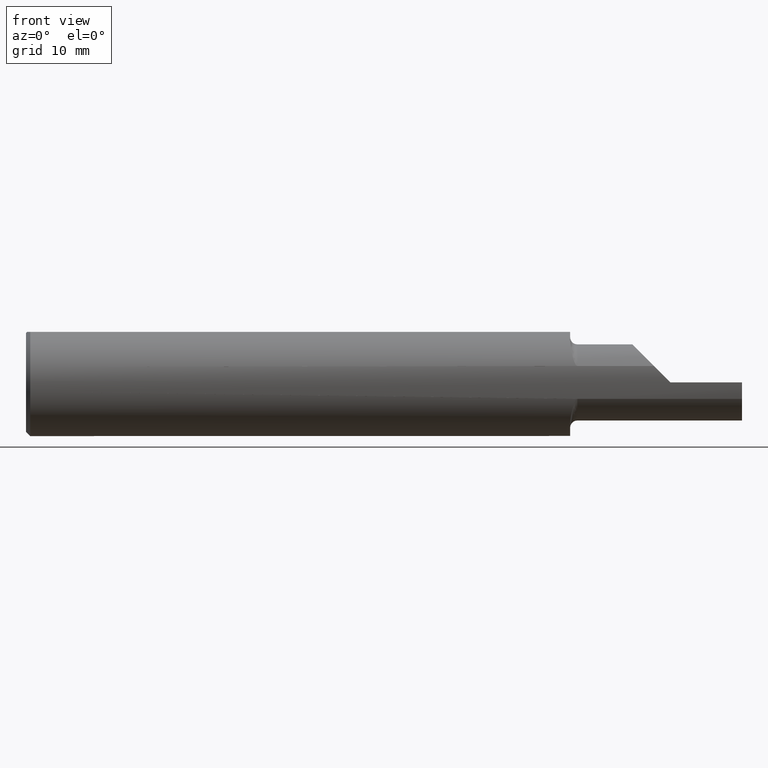
[diagram: clean part render]
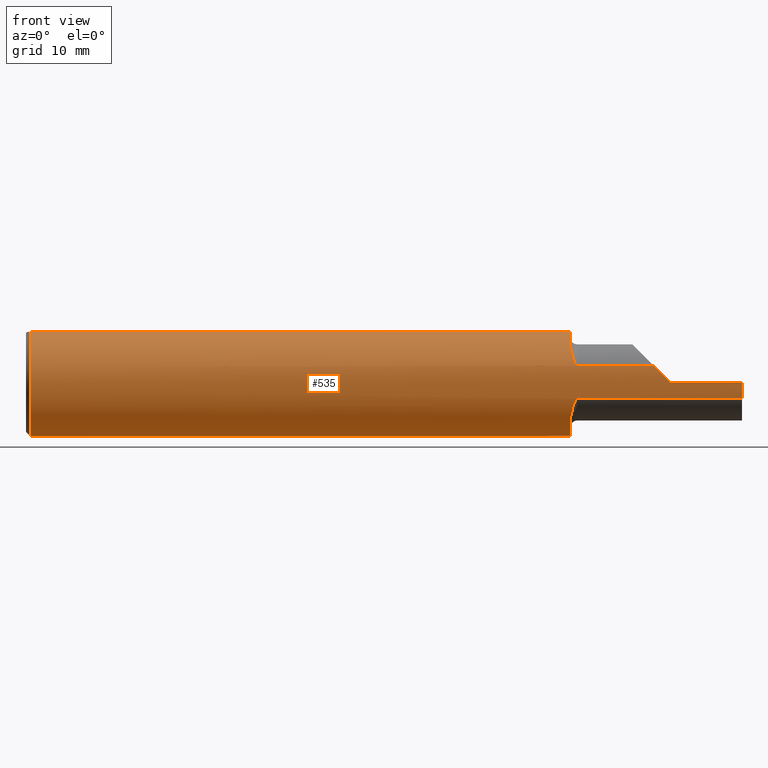
[diagram: same view with one face highlighted and labeled with its STEP entity id]
A machine part, front view. The second image highlights one B-rep face of the part: STEP entity #535.
In plain terms, the highlighted cylindrical surface (partial cylindrical patch) has radius 4.7587 mm, axis along (-1, -0, -0).
Its self-contained STEP definition (entity closure, byte-faithful):
#9 = CARTESIAN_POINT ( 'NONE',  ( 0.01500000000000093273, 0.000000000000000000, 0.000000000000000000 ) ) ;
#19 = AXIS2_PLACEMENT_3D ( 'NONE', #620, #899, #191 ) ;
#21 = DIRECTION ( 'NONE',  ( 1.000000000000000000, 0.000000000000000000, 0.000000000000000000 ) ) ;
#32 = ORIENTED_EDGE ( 'NONE', *, *, #883, .T. ) ;
#34 = CARTESIAN_POINT ( 'NONE',  ( 1.912861924135776270, -0.1712588160411981919, 0.07610809679489820290 ) ) ;
#35 = AXIS2_PLACEMENT_3D ( 'NONE', #322, #251, #592 ) ;
#42 = EDGE_CURVE ( 'NONE', #242, #57, #150, .T. ) ;
#44 = CARTESIAN_POINT ( 'NONE',  ( 1.908844572613993984, -0.1652240583779467920, 0.08882027308793423448 ) ) ;
#46 = CARTESIAN_POINT ( 'NONE',  ( 1.914331470962521431, -0.1730809661842622749, -0.07185561948439703195 ) ) ;
#50 = CIRCLE ( 'NONE', #812, 0.1873499999999999888 ) ;
#51 = DIRECTION ( 'NONE',  ( 0.000000000000000000, 0.000000000000000000, 1.000000000000000000 ) ) ;
#53 = ORIENTED_EDGE ( 'NONE', *, *, #164, .F. ) ;
#54 = CARTESIAN_POINT ( 'NONE',  ( 2.153260140802780942, -0.1783697086546692234, 0.05730854678360303156 ) ) ;
#57 = VERTEX_POINT ( 'NONE', #884 ) ;
#63 = AXIS2_PLACEMENT_3D ( 'NONE', #462, #394, #516 ) ;
#67 = CARTESIAN_POINT ( 'NONE',  ( 1.899999999999999023, -0.1312984737625748632, -0.1350514632126308956 ) ) ;
#82 = DIRECTION ( 'NONE',  ( -1.000000000000000000, -0.000000000000000000, -0.000000000000000000 ) ) ;
#95 = CARTESIAN_POINT ( 'NONE',  ( 1.920126530293609468, -0.1772957297413640665, -0.06055838166122240462 ) ) ;
#107 = EDGE_CURVE ( 'NONE', #369, #373, #351, .T. ) ;
#108 = ORIENTED_EDGE ( 'NONE', *, *, #473, .T. ) ;
#118 = CARTESIAN_POINT ( 'NONE',  ( 0.01500000000000093273, 0.06325108694718235836, 0.1763499999999999235 ) ) ;
#126 = CARTESIAN_POINT ( 'NONE',  ( 1.899999999999999911, -0.1160303770351322067, -0.1470951192429071075 ) ) ;
#147 = DIRECTION ( 'NONE',  ( 0.000000000000000000, 0.000000000000000000, -1.000000000000000000 ) ) ;
#150 = B_SPLINE_CURVE_WITH_KNOTS ( 'NONE', 3,
 ( #458, #803, #674, #455, #325, #669, #44, #34, #241, #739, #258, #598, #252, #173, #806, #604 ),
 .UNSPECIFIED., .F., .F.,
 ( 4, 2, 2, 2, 2, 2, 2, 4 ),
 ( 0.0004765446698425022357, 0.001211022660623638442, 0.001945500651404774703, 0.002679978642185911180, 0.003047217637576483430, 0.003230837135271765002, 0.003322646884119405571, 0.003414456632967046140 ),
 .UNSPECIFIED. ) ;
#152 = CARTESIAN_POINT ( 'NONE',  ( 1.899999999999999911, 0.000000000000000000, 0.000000000000000000 ) ) ;
#164 = EDGE_CURVE ( 'NONE', #237, #667, #911, .T. ) ;
#168 = ORIENTED_EDGE ( 'NONE', *, *, #338, .F. ) ;
#173 = CARTESIAN_POINT ( 'NONE',  ( 1.922655856876672065, -0.1781552959228000221, 0.05797775639604801912 ) ) ;
#191 = DIRECTION ( 'NONE',  ( 0.000000000000000000, 0.000000000000000000, -1.000000000000000000 ) ) ;
#194 = CARTESIAN_POINT ( 'NONE',  ( 2.500000000000000000, 0.000000000000000000, 0.000000000000000000 ) ) ;
#200 = LINE ( 'NONE', #818, #891 ) ;
#204 = CARTESIAN_POINT ( 'NONE',  ( 0.01500000000000093273, -0.06325108694718235836, 0.1763499999999999235 ) ) ;
#205 = CARTESIAN_POINT ( 'NONE',  ( 1.917141984682262823, -0.1755174329696185531, -0.06556455082928973332 ) ) ;
#220 = CARTESIAN_POINT ( 'NONE',  ( 2.250000000000000000, -0.1873499999999999888, 9.184850993605143507E-17 ) ) ;
#227 = CARTESIAN_POINT ( 'NONE',  ( 2.500000000000000000, -0.1873499999999999888, 0.000000000000000000 ) ) ;
#231 = VECTOR ( 'NONE', #269, 39.37007874015748143 ) ;
#235 = CARTESIAN_POINT ( 'NONE',  ( 1.920855552425395629, -0.1776175334603398159, -0.05960499283470922088 ) ) ;
#237 = VERTEX_POINT ( 'NONE', #406 ) ;
#241 = CARTESIAN_POINT ( 'NONE',  ( 1.914343418362562943, -0.1730952584121424886, 0.07182162584496383506 ) ) ;
#242 = VERTEX_POINT ( 'NONE', #687 ) ;
#245 = CYLINDRICAL_SURFACE ( 'NONE', #63, 0.1873499999999999888 ) ;
#251 = DIRECTION ( 'NONE',  ( 1.000000000000000000, 0.000000000000000000, 0.000000000000000000 ) ) ;
#252 = CARTESIAN_POINT ( 'NONE',  ( 1.920882408083212312, -0.1776276410483813295, 0.05957475000071229404 ) ) ;
#258 = CARTESIAN_POINT ( 'NONE',  ( 1.918195961774044278, -0.1762973784583231618, 0.06343092843761441446 ) ) ;
#260 = EDGE_CURVE ( 'NONE', #618, #688, #890, .T. ) ;
#269 = DIRECTION ( 'NONE',  ( 1.000000000000000000, 0.000000000000000000, 0.000000000000000000 ) ) ;
#271 = CARTESIAN_POINT ( 'NONE',  ( 1.899999999999999911, -0.06325108694718235836, 0.1763499999999999235 ) ) ;
#272 = CARTESIAN_POINT ( 'NONE',  ( 0.000000000000000000, 0.06325108694718235836, 0.1763499999999999235 ) ) ;
#277 = EDGE_CURVE ( 'NONE', #886, #237, #50, .T. ) ;
#280 = ORIENTED_EDGE ( 'NONE', *, *, #260, .T. ) ;
#287 = CARTESIAN_POINT ( 'NONE',  ( 2.153260140802780942, -0.1783697086546692234, -0.05730854678360303156 ) ) ;
#290 = VECTOR ( 'NONE', #907, 39.37007874015748143 ) ;
#294 = CARTESIAN_POINT ( 'NONE',  ( 2.500000000000000000, -0.1783697086546688626, -0.05730854678360295523 ) ) ;
#298 = EDGE_CURVE ( 'NONE', #618, #908, #639, .T. ) ;
#311 = ORIENTED_EDGE ( 'NONE', *, *, #298, .F. ) ;
#322 = CARTESIAN_POINT ( 'NONE',  ( 0.01500000000000093273, 0.000000000000000000, 0.000000000000000000 ) ) ;
#325 = CARTESIAN_POINT ( 'NONE',  ( 1.903482061302896433, -0.1498697720275259659, 0.1128244190103262073 ) ) ;
#330 = LINE ( 'NONE', #54, #231 ) ;
#333 = ORIENTED_EDGE ( 'NONE', *, *, #852, .F. ) ;
#338 = EDGE_CURVE ( 'NONE', #736, #663, #916, .T. ) ;
#340 = CARTESIAN_POINT ( 'NONE',  ( 2.192691453216395914, -0.1783697086546688348, 0.05730854678360401688 ) ) ;
#346 = CARTESIAN_POINT ( 'NONE',  ( 1.899999999999999911, -0.1160303770351322067, -0.1470951192429071075 ) ) ;
#351 =( BOUNDED_CURVE ( )  B_SPLINE_CURVE ( 3, ( #517, #735, #665, #340 ),
 .UNSPECIFIED., .F., .F. ) 
 B_SPLINE_CURVE_WITH_KNOTS ( ( 4, 4 ),
 ( 4.712388980384690562, 5.023262387692875919 ),
 .UNSPECIFIED. ) 
 CURVE ( )  GEOMETRIC_REPRESENTATION_ITEM ( )  RATIONAL_B_SPLINE_CURVE ( ( 1.000000000000000000, 0.9919626788073498957, 0.9919626788073498957, 1.000000000000000000 ) ) 
 REPRESENTATION_ITEM ( '' )  );
#369 = VERTEX_POINT ( 'NONE', #220 ) ;
#373 = VERTEX_POINT ( 'NONE', #502 ) ;
#387 = ORIENTED_EDGE ( 'NONE', *, *, #107, .T. ) ;
#389 = VECTOR ( 'NONE', #715, 39.37007874015748143 ) ;
#394 = DIRECTION ( 'NONE',  ( -1.000000000000000000, -0.000000000000000000, -0.000000000000000000 ) ) ;
#403 = AXIS2_PLACEMENT_3D ( 'NONE', #9, #21, #147 ) ;
#406 = CARTESIAN_POINT ( 'NONE',  ( 1.899999999999999911, 0.06325108694718235836, 0.1763499999999999235 ) ) ;
#410 = CARTESIAN_POINT ( 'NONE',  ( 1.918162645443745928, -0.1762760481395244938, -0.06349063590883606556 ) ) ;
#414 = CARTESIAN_POINT ( 'NONE',  ( 1.908867519642199362, -0.1652587220708481019, -0.08874743406640397958 ) ) ;
#430 = DIRECTION ( 'NONE',  ( 0.000000000000000000, 0.000000000000000000, -1.000000000000000000 ) ) ;
#433 = CIRCLE ( 'NONE', #35, 0.1873499999999999888 ) ;
#434 = AXIS2_PLACEMENT_3D ( 'NONE', #194, #909, #51 ) ;
#441 = DIRECTION ( 'NONE',  ( 1.000000000000000000, 0.000000000000000000, 0.000000000000000000 ) ) ;
#444 = CARTESIAN_POINT ( 'NONE',  ( 1.922632702519553760, -0.1781504652642085795, -0.05799271583144490622 ) ) ;
#455 = CARTESIAN_POINT ( 'NONE',  ( 1.902207105173796986, -0.1438831799119798249, 0.1203810775388774040 ) ) ;
#458 = CARTESIAN_POINT ( 'NONE',  ( 1.899999999999999911, -0.1160303770351322067, 0.1470951192429071075 ) ) ;
#462 = CARTESIAN_POINT ( 'NONE',  ( 0.000000000000000000, 0.000000000000000000, 0.000000000000000000 ) ) ;
#463 = VECTOR ( 'NONE', #82, 39.37007874015748143 ) ;
#473 = EDGE_CURVE ( 'NONE', #688, #667, #433, .T. ) ;
#474 = DIRECTION ( 'NONE',  ( -1.000000000000000000, -0.000000000000000000, -0.000000000000000000 ) ) ;
#481 = CARTESIAN_POINT ( 'NONE',  ( 0.01500000000000093273, 0.000000000000000000, -0.1873499999999999888 ) ) ;
#502 = CARTESIAN_POINT ( 'NONE',  ( 2.192691453216395914, -0.1783697086546688348, 0.05730854678360401688 ) ) ;
#510 = EDGE_LOOP ( 'NONE', ( #168, #654, #32, #387, #861, #707, #761, #311, #280, #108, #53, #792, #333 ) ) ;
#512 = CARTESIAN_POINT ( 'NONE',  ( 0.000000000000000000, -0.06325108694718235836, 0.1763499999999999235 ) ) ;
#516 = DIRECTION ( 'NONE',  ( 0.000000000000000000, 0.000000000000000000, 1.000000000000000000 ) ) ;
#517 = CARTESIAN_POINT ( 'NONE',  ( 2.250000000000000000, -0.1873499999999999888, 9.184850993605143507E-17 ) ) ;
#531 = FACE_OUTER_BOUND ( 'NONE', #510, .T. ) ;
#535 = ADVANCED_FACE ( 'NONE', ( #531 ), #245, .T. ) ;
#548 = CIRCLE ( 'NONE', #434, 0.1873499999999999888 ) ;
#592 = DIRECTION ( 'NONE',  ( 0.000000000000000000, 0.000000000000000000, -1.000000000000000000 ) ) ;
#598 = CARTESIAN_POINT ( 'NONE',  ( 1.920156893127638043, -0.1773094052629743123, 0.06051821018280577336 ) ) ;
#604 = CARTESIAN_POINT ( 'NONE',  ( 1.924999999999999822, -0.1783697086546690014, 0.05730854678360355198 ) ) ;
#605 = EDGE_CURVE ( 'NONE', #57, #373, #330, .T. ) ;
#606 = B_SPLINE_CURVE_WITH_KNOTS ( 'NONE', 3,
 ( #864, #728, #444, #235, #95, #410, #205, #46, #900, #414, #697, #822, #67, #346 ),
 .UNSPECIFIED., .F., .F.,
 ( 4, 2, 2, 2, 2, 2, 4 ),
 ( 1.965724206580375924E-07, 9.384097494425141172E-05, 0.0001874853774678447802, 0.0003747741825150322490, 0.0007493517926094063735, 0.001498507012798147575, 0.002996817453175628244 ),
 .UNSPECIFIED. ) ;
#618 = VERTEX_POINT ( 'NONE', #204 ) ;
#620 = CARTESIAN_POINT ( 'NONE',  ( 1.899999999999999911, 0.000000000000000000, 0.000000000000000000 ) ) ;
#636 = EDGE_CURVE ( 'NONE', #908, #242, #718, .T. ) ;
#639 = LINE ( 'NONE', #512, #389 ) ;
#654 = ORIENTED_EDGE ( 'NONE', *, *, #661, .T. ) ;
#661 = EDGE_CURVE ( 'NONE', #736, #804, #548, .T. ) ;
#663 = VERTEX_POINT ( 'NONE', #832 ) ;
#665 = CARTESIAN_POINT ( 'NONE',  ( 2.211249739839921347, -0.1843323154515825735, 0.03875026016007859092 ) ) ;
#667 = VERTEX_POINT ( 'NONE', #118 ) ;
#669 = CARTESIAN_POINT ( 'NONE',  ( 1.906810654711052821, -0.1605151270937286989, 0.09708342838344971581 ) ) ;
#674 = CARTESIAN_POINT ( 'NONE',  ( 1.900459820461684934, -0.1306920593659778862, 0.1345866223280905716 ) ) ;
#687 = CARTESIAN_POINT ( 'NONE',  ( 1.899999999999999911, -0.1160303770351322067, 0.1470951192429071075 ) ) ;
#688 = VERTEX_POINT ( 'NONE', #481 ) ;
#697 = CARTESIAN_POINT ( 'NONE',  ( 1.906840882823497063, -0.1605979928433043102, -0.09695168669191611688 ) ) ;
#707 = ORIENTED_EDGE ( 'NONE', *, *, #42, .F. ) ;
#715 = DIRECTION ( 'NONE',  ( 1.000000000000000000, 0.000000000000000000, 0.000000000000000000 ) ) ;
#718 = CIRCLE ( 'NONE', #19, 0.1873499999999999888 ) ;
#728 = CARTESIAN_POINT ( 'NONE',  ( 1.923749915749441541, -0.1783697086546691402, -0.05730854678360332299 ) ) ;
#735 = CARTESIAN_POINT ( 'NONE',  ( 2.230507368514858868, -0.1873500000000000165, 0.01949263148514139912 ) ) ;
#736 = VERTEX_POINT ( 'NONE', #294 ) ;
#739 = CARTESIAN_POINT ( 'NONE',  ( 1.917163479082083288, -0.1755340703778142386, 0.06552011612887780057 ) ) ;
#761 = ORIENTED_EDGE ( 'NONE', *, *, #636, .F. ) ;
#792 = ORIENTED_EDGE ( 'NONE', *, *, #277, .F. ) ;
#803 = CARTESIAN_POINT ( 'NONE',  ( 1.900000000000000133, -0.1236042208126960640, 0.1411207813203502193 ) ) ;
#804 = VERTEX_POINT ( 'NONE', #227 ) ;
#806 = CARTESIAN_POINT ( 'NONE',  ( 1.923764212023052478, -0.1783697086546797150, 0.05730854678357103632 ) ) ;
#812 = AXIS2_PLACEMENT_3D ( 'NONE', #152, #441, #430 ) ;
#818 = CARTESIAN_POINT ( 'NONE',  ( 3.374459510989174253E-31, -0.1873499999999999610, 9.184850993605140056E-16 ) ) ;
#822 = CARTESIAN_POINT ( 'NONE',  ( 1.901810233260114336, -0.1445504080075235009, -0.1207082908324050158 ) ) ;
#832 = CARTESIAN_POINT ( 'NONE',  ( 1.924999999999999822, -0.1783697086546690014, -0.05730854678360349647 ) ) ;
#852 = EDGE_CURVE ( 'NONE', #663, #886, #606, .T. ) ;
#861 = ORIENTED_EDGE ( 'NONE', *, *, #605, .F. ) ;
#864 = CARTESIAN_POINT ( 'NONE',  ( 1.924999999999999822, -0.1783697086546690014, -0.05730854678360349647 ) ) ;
#883 = EDGE_CURVE ( 'NONE', #804, #369, #200, .T. ) ;
#884 = CARTESIAN_POINT ( 'NONE',  ( 1.924999999999999822, -0.1783697086546690014, 0.05730854678360355198 ) ) ;
#886 = VERTEX_POINT ( 'NONE', #126 ) ;
#890 = CIRCLE ( 'NONE', #403, 0.1873499999999999888 ) ;
#891 = VECTOR ( 'NONE', #474, 39.37007874015748143 ) ;
#899 = DIRECTION ( 'NONE',  ( 1.000000000000000000, 0.000000000000000000, 0.000000000000000000 ) ) ;
#900 = CARTESIAN_POINT ( 'NONE',  ( 1.912851115778101629, -0.1712424833498255861, -0.07614241156970148749 ) ) ;
#907 = DIRECTION ( 'NONE',  ( -1.000000000000000000, -0.000000000000000000, -0.000000000000000000 ) ) ;
#908 = VERTEX_POINT ( 'NONE', #271 ) ;
#909 = DIRECTION ( 'NONE',  ( -1.000000000000000000, -0.000000000000000000, -0.000000000000000000 ) ) ;
#911 = LINE ( 'NONE', #272, #290 ) ;
#916 = LINE ( 'NONE', #287, #463 ) ;